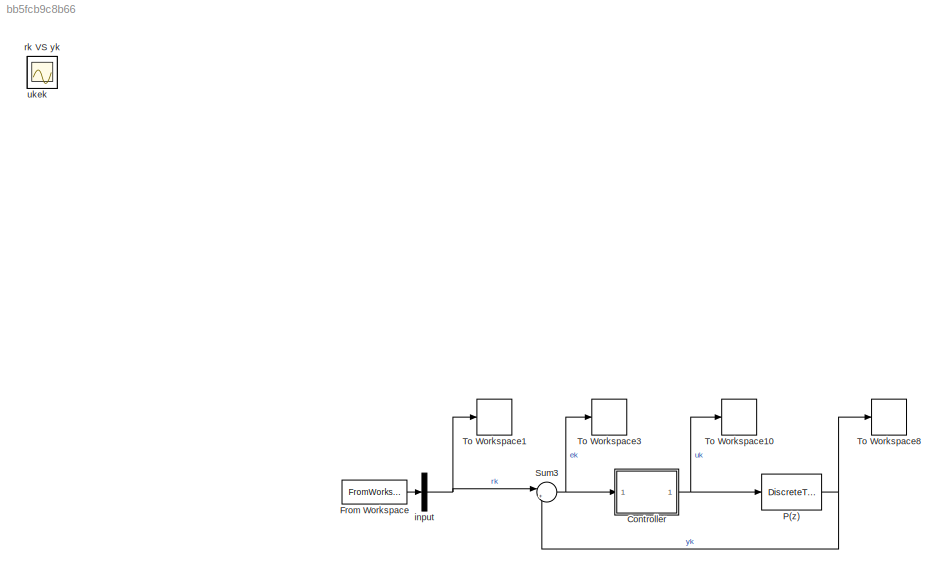
MODEL slx_bb5fcb9c8b66
KIND model
CONFIG AbsTol = auto
CONFIG EnableMultiTasking = off
CONFIG FixedStep = auto
CONFIG MaxStep = auto
CONFIG MinStep = auto
CONFIG RelTol = 1e-3
CONFIG SampleTimeConstraint = Unconstrained
CONFIG Solver = ode45
CONFIG SolverName = ode45
CONFIG StartTime = 0.0
CONFIG StopTime = Test_time
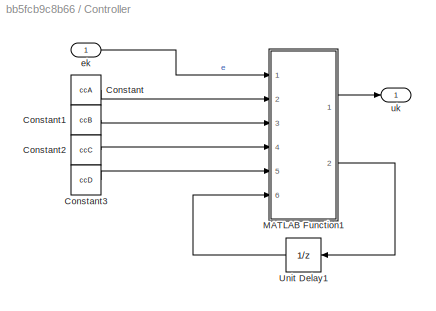
BLOCK [SubSystem] Controller
  Ports = [1, 1]
  RequestExecContextInheritance = off
  Variant = off
BLOCK [Constant] Controller/Constant
  Value = ccA
  VectorParams1D = off
BLOCK [Constant] Controller/Constant1
  Value = ccB
  VectorParams1D = off
BLOCK [Constant] Controller/Constant2
  Value = ccC
  VectorParams1D = off
BLOCK [Constant] Controller/Constant3
  Value = ccD
  VectorParams1D = off
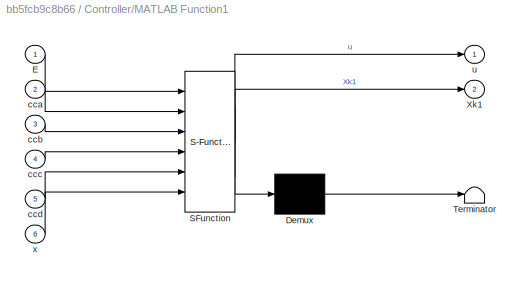
BLOCK [SubSystem] Controller/MATLAB Function1
  ErrorFcn = Stateflow.Translate.translate
  PermitHierarchicalResolution = ExplicitOnly
  Ports = [6, 2]
  RequestExecContextInheritance = off
  SFBlockType = MATLAB Function
  TreatAsAtomicUnit = on
  Variant = off
BLOCK [Demux] Controller/MATLAB Function1/ Demux 
  Outputs = 1
  Ports = [1, 1]
BLOCK [S-Function] Controller/MATLAB Function1/ SFunction 
  EnableBusSupport = on
  FunctionName = sf_sfun
  PortCounts = [6 3]
  Ports = [6, 3]
  SFcnIsStateOwnerBlock = off
  SFunctionDeploymentMode = off
  Tag = Stateflow S-Function Block_fixedQ_Ccode 1
BLOCK [Terminator] Controller/MATLAB Function1/ Terminator 
BLOCK [Inport] Controller/MATLAB Function1/E
  IconDisplay = Port number
BLOCK [Outport] Controller/MATLAB Function1/Xk1
  IconDisplay = Port number
  Port = 2
BLOCK [Inport] Controller/MATLAB Function1/cca
  IconDisplay = Port number
  Port = 2
BLOCK [Inport] Controller/MATLAB Function1/ccb
  IconDisplay = Port number
  Port = 3
BLOCK [Inport] Controller/MATLAB Function1/ccc
  IconDisplay = Port number
  Port = 4
BLOCK [Inport] Controller/MATLAB Function1/ccd
  IconDisplay = Port number
  Port = 5
BLOCK [Outport] Controller/MATLAB Function1/u
  IconDisplay = Port number
BLOCK [Inport] Controller/MATLAB Function1/x
  IconDisplay = Port number
  Port = 6
BLOCK [UnitDelay] Controller/Unit Delay1
  InitialCondition = zeros(Lq+4,1)
  InputProcessing = Elements as channels (sample based)
  SampleTime = -1
BLOCK [Inport] Controller/ek
  IconDisplay = Port number
BLOCK [Outport] Controller/uk
  IconDisplay = Port number
BLOCK [FromWorkspace] From Workspace
  SampleTime = Ts
  VariableName = inputdata
  ZeroCross = on
BLOCK [DiscreteTransferFcn] P(z)
  Denominator = plant.v2p.den{1}
  InputPortMap = u0
  Numerator = plant.v2p.num{1}
  Ports = [1, 1]
  SampleTime = Ts
BLOCK [Sum] Sum3
  IconShape = round
  InputSameDT = off
  Inputs = |+-
  OutDataTypeStr = Inherit: Inherit via internal rule
  Ports = [2, 1]
  SaturateOnIntegerOverflow = off
BLOCK [ToWorkspace] To Workspace1
  MaxDataPoints = inf
  Ports = [1]
  SampleTime = -1
  VariableName = rk
BLOCK [ToWorkspace] To Workspace10
  MaxDataPoints = inf
  Ports = [1]
  SampleTime = -1
  VariableName = uk
BLOCK [ToWorkspace] To Workspace3
  MaxDataPoints = inf
  Ports = [1]
  SampleTime = -1
  VariableName = ek
BLOCK [ToWorkspace] To Workspace8
  MaxDataPoints = inf
  Ports = [1]
  SampleTime = -1
  VariableName = yk
BLOCK [Scope] ek
  IOType = viewer
  NumInputPorts = 1
  Ports = []
  ScopeSpecificationString = Simulink.scopes.TimeScopeBlockCfg('CurrentConfiguration', extmgr.ConfigurationSet(extmgr.Configuration('Core','General UI',true),extmgr.Configuration('Core','Source UI',true),extmgr.Configuration('Sources','WiredSimulink',true,'DataLoggingVariableName','ScopeData1'),extmgr.Configuration('Visuals','Time Domain',true,'SerializedDisplays',{struct('MinYLimReal','-0.00922','MaxYLimReal','0.07813','YLab...<+1361ch>
BLOCK [Demux] input
  DisplayOption = bar
  Outputs = 1
  Ports = [1, 1]
BLOCK [Scope] rk VS yk
  IOType = viewer
  NumInputPorts = 1
  Ports = []
  ScopeSpecificationString = Simulink.scopes.TimeScopeBlockCfg('CurrentConfiguration', extmgr.ConfigurationSet(extmgr.Configuration('Core','General UI',true),extmgr.Configuration('Core','Source UI',true),extmgr.Configuration('Sources','WiredSimulink',true,'DataLoggingVariableName','ScopeData1'),extmgr.Configuration('Visuals','Time Domain',true,'SerializedDisplays',{struct('MinYLimReal','-2.24976','MaxYLimReal','2.24789','YLab...<+1528ch>
BLOCK [Scope] uk
  IOType = viewer
  NumInputPorts = 1
  Ports = []
  ScopeSpecificationString = Simulink.scopes.TimeScopeBlockCfg('CurrentConfiguration', extmgr.ConfigurationSet(extmgr.Configuration('Core','General UI',true),extmgr.Configuration('Core','Source UI',true),extmgr.Configuration('Sources','WiredSimulink',true,'DataLoggingVariableName','ScopeData2'),extmgr.Configuration('Visuals','Time Domain',true,'SerializedDisplays',{struct('MinYLimReal','-142.62941','MaxYLimReal','247.45432','...<+1375ch>
LINE Controller/Constant1:1 -> Controller/MATLAB Function1:3
LINE Controller/Constant2:1 -> Controller/MATLAB Function1:4
LINE Controller/Constant3:1 -> Controller/MATLAB Function1:5
LINE Controller/Constant:1 -> Controller/MATLAB Function1:2
LINE Controller/MATLAB Function1:1 -> Controller/uk:1
LINE Controller/MATLAB Function1:2 -> Controller/Unit Delay1:1
LINE Controller/Unit Delay1:1 -> Controller/MATLAB Function1:6
LINE Controller/ek:1 -> Controller/MATLAB Function1:1
NET Controller:1 -> P(z):1, To Workspace10:1
LINE From Workspace:1 -> input:1
NET P(z):1 -> Sum3:2, To Workspace8:1
NET Sum3:1 -> Controller:1, To Workspace3:1
NET input:1 -> Sum3:1, To Workspace1:1
note: NET lines group one-source signal fan-out (src -> all destinations, sorted); 1:1 wires keep LINE
CHART Controller/MATLAB Function1 states=1 transitions=1
  STATE_LABEL 'eML_blk_kernel()'
  STATE_LABEL 'SCRIPT:\nfunction [u,Xk1] = C_Z(E,cca,ccb,ccc,ccd,x)\n\n    Xk1 = cca*x+ccb*E;\n    u = ccc*x+ccd*E;\nend'
